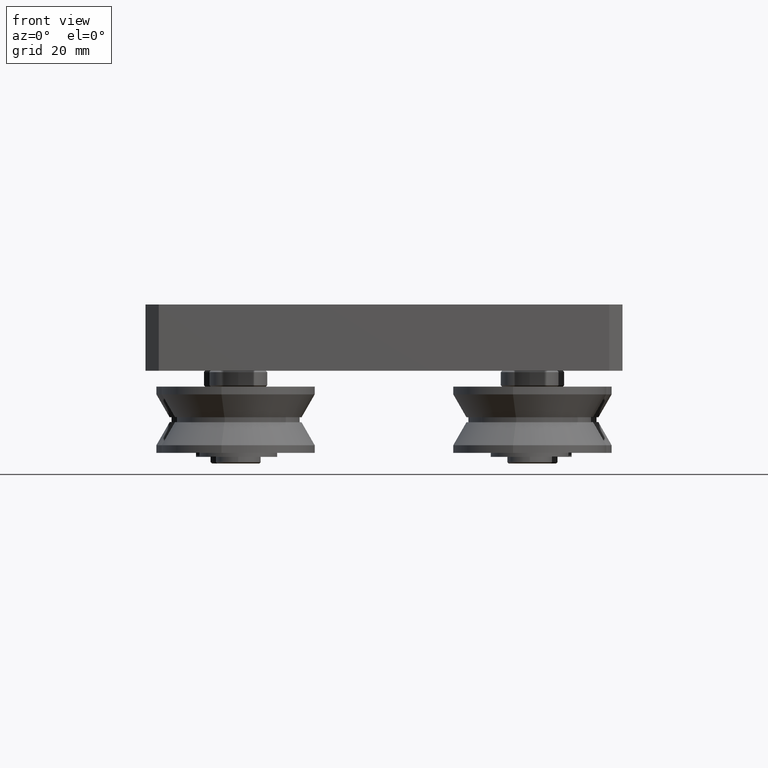
[diagram: clean part render]
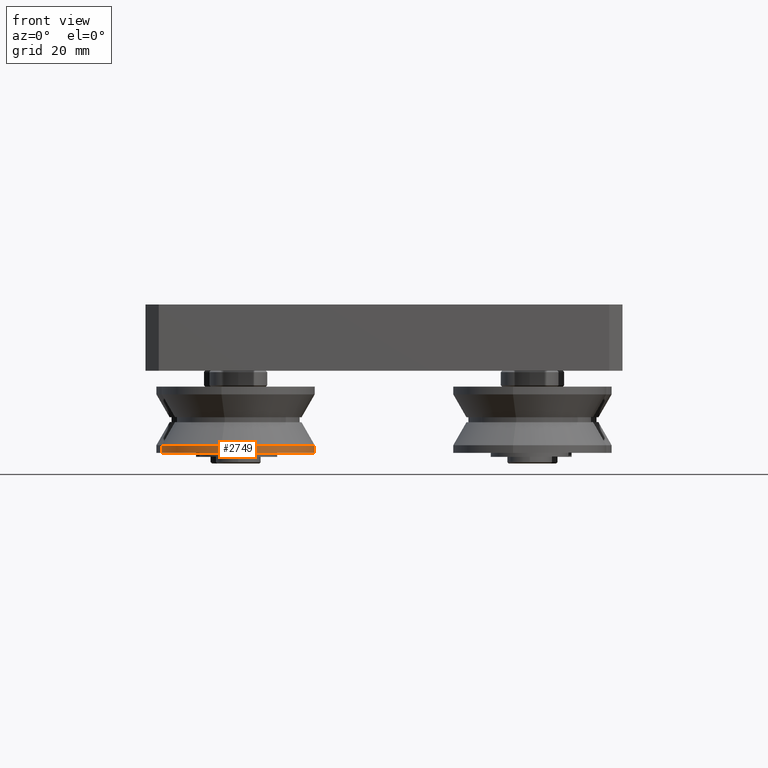
[diagram: same view with one face highlighted and labeled with its STEP entity id]
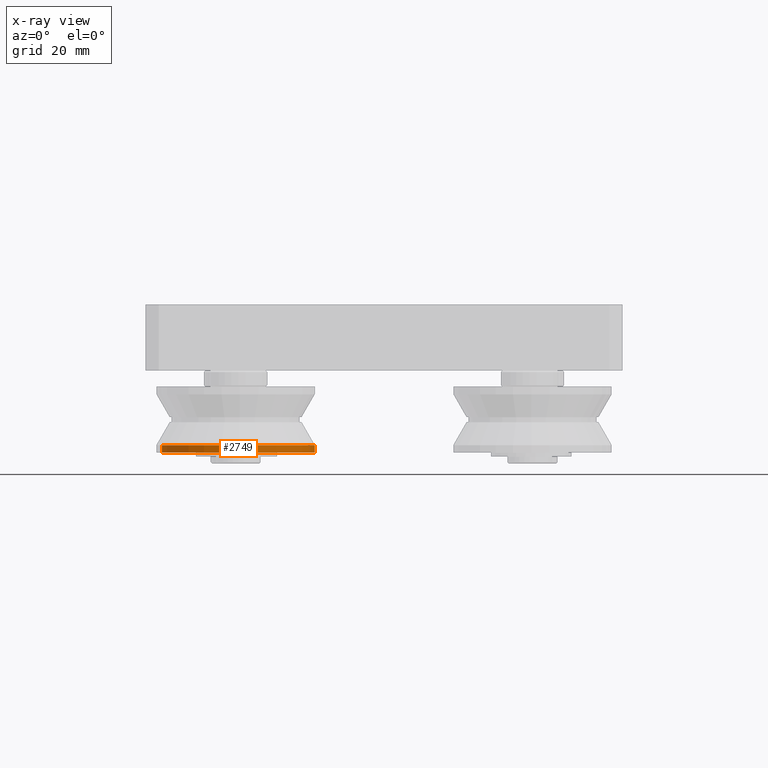
[diagram: x-ray of the same camera — body ghosted, the highlighted face saturated]
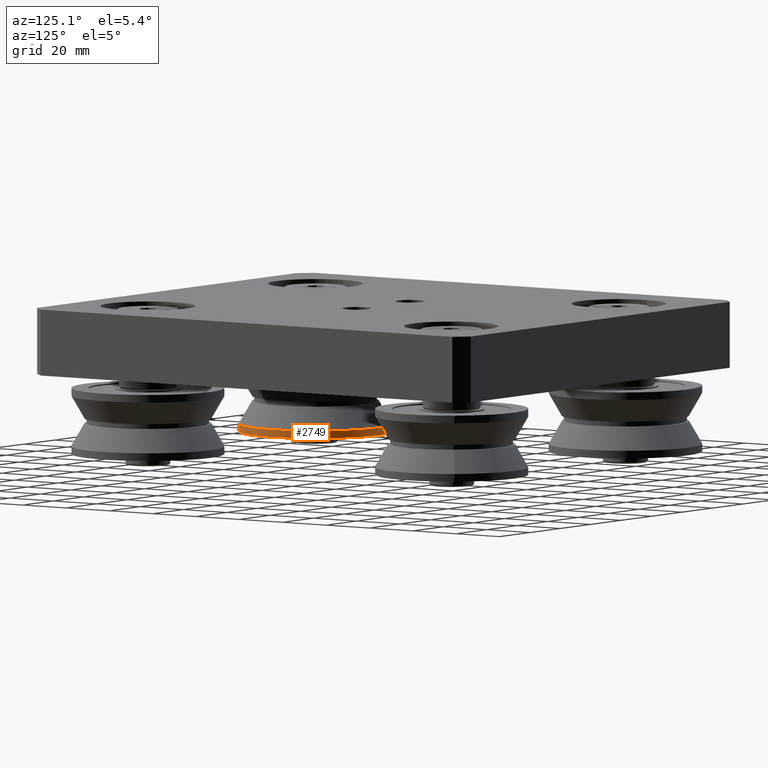
[diagram: same view with one face highlighted and labeled with its STEP entity id]
A machine part, front view. The second image highlights one B-rep face of the part: STEP entity #2749.
The next image is the same camera in x-ray: the body ghosted, the highlighted face saturated — about 0% of this face is hidden behind the body in this view.
A second angle (auxiliary view) of the same face is appended — the face is thin or edge-on in the first view.
In plain terms, the highlighted cylindrical surface (bore or boss wall) has radius 29 mm, axis along (0, 0, 1).
Its self-contained STEP definition (entity closure, byte-faithful):
#167=CYLINDRICAL_SURFACE('',#3222,29.);
#319=CIRCLE('',#3221,29.);
#320=CIRCLE('',#3223,29.);
#490=FACE_OUTER_BOUND('',#693,.T.);
#693=EDGE_LOOP('',(#2292,#2293,#2294,#2295));
#912=LINE('',#4780,#1127);
#1127=VECTOR('',#3945,29.);
#1341=VERTEX_POINT('',#4775);
#1342=VERTEX_POINT('',#4778);
#1669=EDGE_CURVE('',#1341,#1341,#319,.T.);
#1670=EDGE_CURVE('',#1342,#1342,#320,.T.);
#1671=EDGE_CURVE('',#1342,#1341,#912,.T.);
#2292=ORIENTED_EDGE('',*,*,#1670,.F.);
#2293=ORIENTED_EDGE('',*,*,#1671,.T.);
#2294=ORIENTED_EDGE('',*,*,#1669,.T.);
#2295=ORIENTED_EDGE('',*,*,#1671,.F.);
#2749=ADVANCED_FACE('',(#490),#167,.T.);
#3221=AXIS2_PLACEMENT_3D('',#4776,#3939,#3940);
#3222=AXIS2_PLACEMENT_3D('',#4777,#3941,#3942);
#3223=AXIS2_PLACEMENT_3D('',#4779,#3943,#3944);
#3939=DIRECTION('center_axis',(1.,0.,0.));
#3940=DIRECTION('ref_axis',(0.,1.,0.));
#3941=DIRECTION('center_axis',(1.,0.,0.));
#3942=DIRECTION('ref_axis',(0.,1.,0.));
#3943=DIRECTION('center_axis',(1.,0.,0.));
#3944=DIRECTION('ref_axis',(0.,1.,0.));
#3945=DIRECTION('',(-1.,0.,0.));
#4775=CARTESIAN_POINT('',(-12.5,-29.,-3.55147571752732E-15));
#4776=CARTESIAN_POINT('Origin',(-12.5,0.,0.));
#4777=CARTESIAN_POINT('Origin',(-11.0538475772934,0.,0.));
#4778=CARTESIAN_POINT('',(-9.60769515458676,-29.,-3.55147571752732E-15));
#4779=CARTESIAN_POINT('Origin',(-9.60769515458676,0.,0.));
#4780=CARTESIAN_POINT('',(-11.0538475772934,-29.,-3.55147571752732E-15));